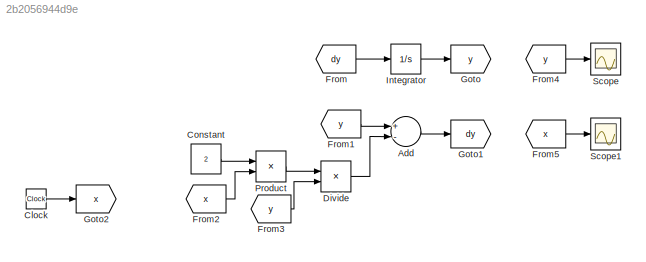
MODEL slx_2b2056944d9e
KIND model
CONFIG AbsTol = auto
CONFIG EnableMultiTasking = off
CONFIG FixedStep = 0.01
CONFIG MaxStep = auto
CONFIG MinStep = auto
CONFIG RelTol = 1e-3
CONFIG SampleTimeConstraint = Unconstrained
CONFIG Solver = ode4
CONFIG SolverName = ode4
CONFIG StartTime = 0.0
CONFIG StopTime = 1
BLOCK [Sum] Add
  InputSameDT = off
  Inputs = +-
  OutDataTypeStr = Inherit: Inherit via internal rule
  Ports = [2, 1]
  SaturateOnIntegerOverflow = off
BLOCK [Clock] Clock
BLOCK [Constant] Constant
  Value = 2
BLOCK [Product] Divide
  InputSameDT = off
  Inputs = */
  OutDataTypeStr = Inherit: Inherit via internal rule
  Ports = [2, 1]
  RndMeth = Floor
  SaturateOnIntegerOverflow = off
BLOCK [From] From
  GotoTag = dy
  TagVisibility = global
BLOCK [From] From1
  GotoTag = y
  TagVisibility = global
BLOCK [From] From2
  GotoTag = x
  TagVisibility = global
BLOCK [From] From3
  GotoTag = y
  TagVisibility = global
BLOCK [From] From4
  GotoTag = y
  TagVisibility = global
BLOCK [From] From5
  GotoTag = x
  TagVisibility = global
BLOCK [Goto] Goto
  GotoTag = y
  TagVisibility = global
BLOCK [Goto] Goto1
  GotoTag = dy
  TagVisibility = global
BLOCK [Goto] Goto2
  GotoTag = x
  TagVisibility = global
BLOCK [Integrator] Integrator
  InitialCondition = 1
  Ports = [1, 1]
BLOCK [Product] Product
  InputSameDT = off
  OutDataTypeStr = Inherit: Inherit via internal rule
  Ports = [2, 1]
  RndMeth = Floor
  SaturateOnIntegerOverflow = off
BLOCK [Scope] Scope
  Floating = off
  NumInputPorts = 1
  Ports = [1]
  ScopeSpecificationString = Simulink.scopes.TimeScopeBlockCfg('CurrentConfiguration', extmgr.ConfigurationSet(extmgr.Configuration('Core','General UI',true),extmgr.Configuration('Core','Source UI',true),extmgr.Configuration('Sources','WiredSimulink',true),extmgr.Configuration('Visuals','Time Domain',true,'SerializedDisplays',{struct('MinYLimReal','0.90849','MaxYLimReal','1.82356','YLabelReal','','MinYLimMag','0.90849','MaxYL...<+1382ch>
BLOCK [Scope] Scope1
  Floating = off
  NumInputPorts = 1
  Ports = [1]
  ScopeSpecificationString = Simulink.scopes.TimeScopeBlockCfg('CurrentConfiguration', extmgr.ConfigurationSet(extmgr.Configuration('Core','General UI',true),extmgr.Configuration('Core','Source UI',true),extmgr.Configuration('Sources','WiredSimulink',true,'DataLoggingVariableName','ScopeData1'),extmgr.Configuration('Visuals','Time Domain',true,'SerializedDisplays',{struct('MinYLimReal','-0.125','MaxYLimReal','1.125','YLabelRe...<+1425ch>
LINE Add:1 -> Goto1:1
LINE Clock:1 -> Goto2:1
LINE Constant:1 -> Product:1
LINE Divide:1 -> Add:2
LINE From1:1 -> Add:1
LINE From2:1 -> Product:2
LINE From3:1 -> Divide:2
LINE From4:1 -> Scope:1
LINE From5:1 -> Scope1:1
LINE From:1 -> Integrator:1
LINE Integrator:1 -> Goto:1
LINE Product:1 -> Divide:1
